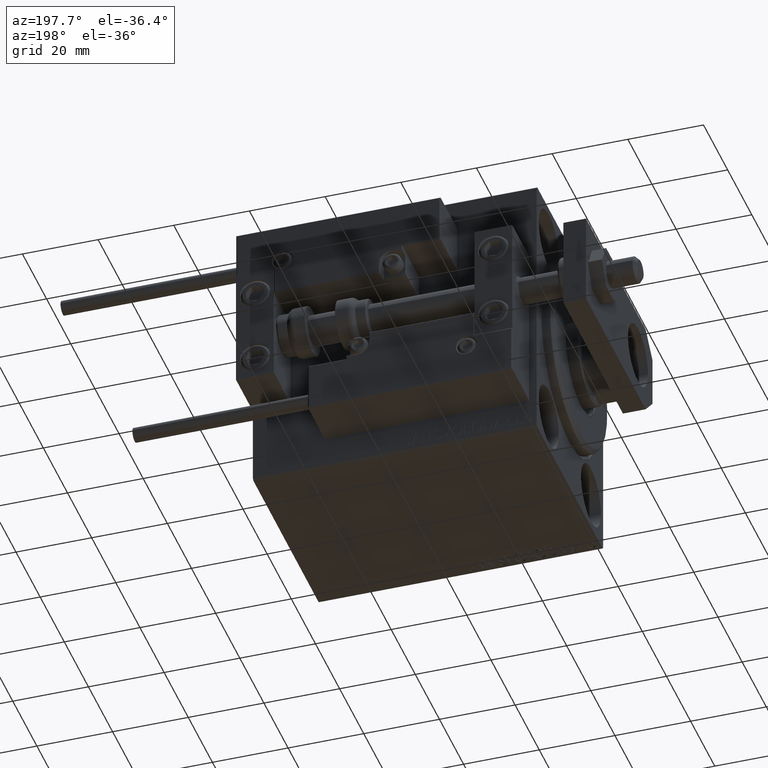
[diagram: clean part render]
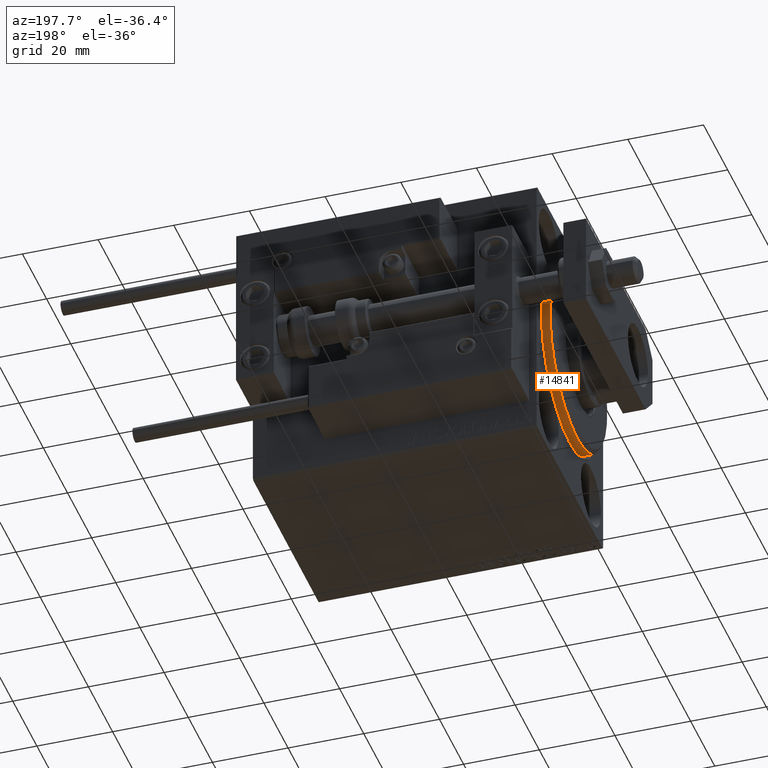
[diagram: same view with one face highlighted and labeled with its STEP entity id]
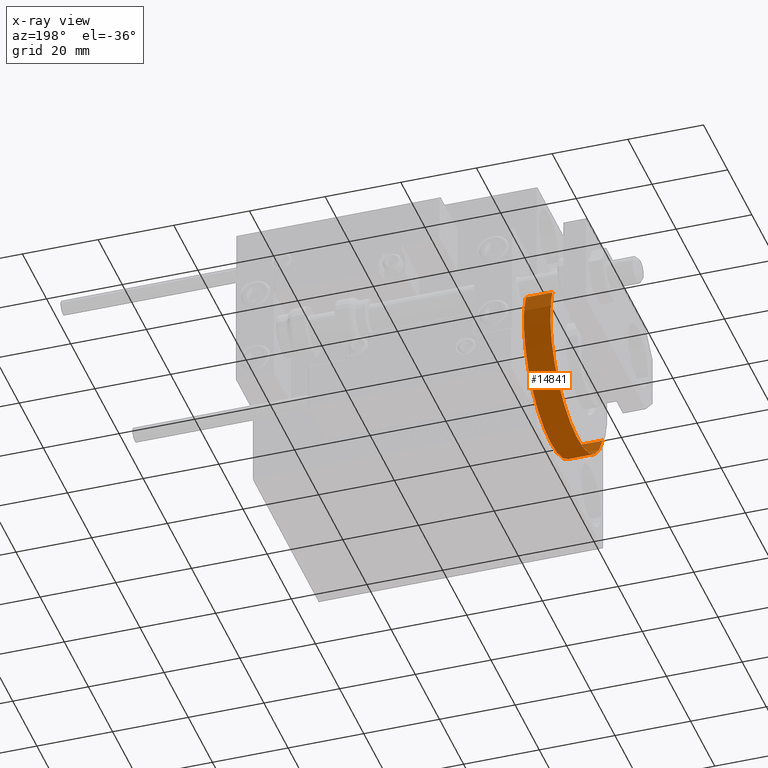
[diagram: x-ray of the same camera — body ghosted, the highlighted face saturated]
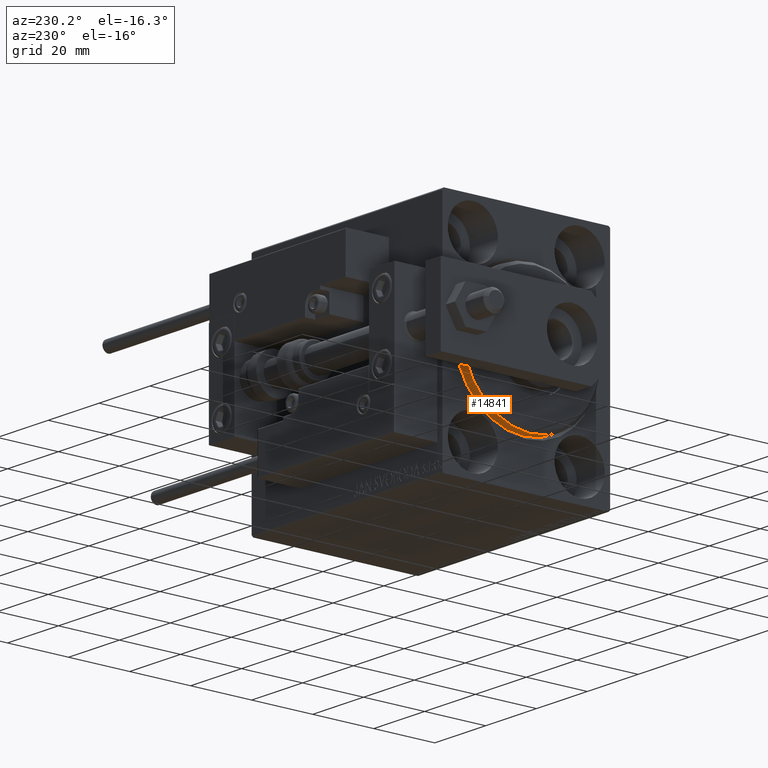
[diagram: same view with one face highlighted and labeled with its STEP entity id]
A machine part, auxiliary view. The second image highlights one B-rep face of the part: STEP entity #14841.
The next image is the same camera in x-ray: the body ghosted, the highlighted face saturated — about 0% of this face is hidden behind the body in this view.
A second angle (auxiliary view) of the same face is appended — the face is thin or edge-on in the first view.
In plain terms, the highlighted cylindrical surface (partial cylindrical patch) has radius 22.5 mm, axis along (1, 0, 0).
Its self-contained STEP definition (entity closure, byte-faithful):
#975 = LINE ( 'NONE', #32251, #6801 ) ;
#1388 = FACE_OUTER_BOUND ( 'NONE', #13546, .T. ) ;
#4994 = VERTEX_POINT ( 'NONE', #23076 ) ;
#5489 = AXIS2_PLACEMENT_3D ( 'NONE', #13219, #6158, #36429 ) ;
#6158 = DIRECTION ( 'NONE',  ( -1.000000000000000000, 0.000000000000000000, 0.000000000000000000 ) ) ;
#6801 = VECTOR ( 'NONE', #27966, 1000.000000000000000 ) ;
#8368 = CARTESIAN_POINT ( 'NONE',  ( -5.000000000000000000, 0.000000000000000000, 0.000000000000000000 ) ) ;
#9217 = CARTESIAN_POINT ( 'NONE',  ( 3.000000000000000000, 0.000000000000000000, 0.000000000000000000 ) ) ;
#9896 = CARTESIAN_POINT ( 'NONE',  ( 1.999999999999999112, 2.755455298081545172E-15, -22.50000000000000355 ) ) ;
#11906 = LINE ( 'NONE', #23752, #29965 ) ;
#13219 = CARTESIAN_POINT ( 'NONE',  ( 1.999999999999999112, 0.000000000000000000, 0.000000000000000000 ) ) ;
#13519 = CIRCLE ( 'NONE', #5489, 22.50000000000000355 ) ;
#13546 = EDGE_LOOP ( 'NONE', ( #34716, #39392, #14631, #37698 ) ) ;
#14631 = ORIENTED_EDGE ( 'NONE', *, *, #41815, .F. ) ;
#14841 = ADVANCED_FACE ( 'NONE', ( #1388 ), #32677, .T. ) ;
#15196 = DIRECTION ( 'NONE',  ( -1.000000000000000000, -0.000000000000000000, -0.000000000000000000 ) ) ;
#20946 = DIRECTION ( 'NONE',  ( 0.000000000000000000, 0.000000000000000000, 1.000000000000000000 ) ) ;
#21042 = EDGE_CURVE ( 'NONE', #4994, #32243, #13519, .T. ) ;
#21307 = DIRECTION ( 'NONE',  ( 0.000000000000000000, 0.000000000000000000, 1.000000000000000000 ) ) ;
#22876 = CARTESIAN_POINT ( 'NONE',  ( -5.000000000000000000, 0.000000000000000000, 22.50000000000000355 ) ) ;
#23076 = CARTESIAN_POINT ( 'NONE',  ( 1.999999999999999112, 0.000000000000000000, 22.50000000000000355 ) ) ;
#23752 = CARTESIAN_POINT ( 'NONE',  ( 3.000000000000000000, 2.755455298081545172E-15, -22.50000000000000355 ) ) ;
#27966 = DIRECTION ( 'NONE',  ( -1.000000000000000000, -0.000000000000000000, -0.000000000000000000 ) ) ;
#28525 = DIRECTION ( 'NONE',  ( -1.000000000000000000, 0.000000000000000000, 0.000000000000000000 ) ) ;
#29965 = VECTOR ( 'NONE', #15196, 1000.000000000000000 ) ;
#30862 = CIRCLE ( 'NONE', #42147, 22.50000000000000355 ) ;
#32243 = VERTEX_POINT ( 'NONE', #9896 ) ;
#32251 = CARTESIAN_POINT ( 'NONE',  ( 3.000000000000000000, 0.000000000000000000, 22.50000000000000355 ) ) ;
#32677 = CYLINDRICAL_SURFACE ( 'NONE', #37536, 22.50000000000000355 ) ;
#34716 = ORIENTED_EDGE ( 'NONE', *, *, #21042, .T. ) ;
#35757 = EDGE_CURVE ( 'NONE', #32243, #35936, #11906, .T. ) ;
#35936 = VERTEX_POINT ( 'NONE', #45448 ) ;
#36218 = DIRECTION ( 'NONE',  ( -1.000000000000000000, -0.000000000000000000, -0.000000000000000000 ) ) ;
#36429 = DIRECTION ( 'NONE',  ( 0.000000000000000000, 0.000000000000000000, -1.000000000000000000 ) ) ;
#37536 = AXIS2_PLACEMENT_3D ( 'NONE', #9217, #36218, #21307 ) ;
#37698 = ORIENTED_EDGE ( 'NONE', *, *, #44911, .F. ) ;
#39392 = ORIENTED_EDGE ( 'NONE', *, *, #35757, .T. ) ;
#41815 = EDGE_CURVE ( 'NONE', #42395, #35936, #30862, .T. ) ;
#42147 = AXIS2_PLACEMENT_3D ( 'NONE', #8368, #28525, #20946 ) ;
#42395 = VERTEX_POINT ( 'NONE', #22876 ) ;
#44911 = EDGE_CURVE ( 'NONE', #4994, #42395, #975, .T. ) ;
#45448 = CARTESIAN_POINT ( 'NONE',  ( -5.000000000000000000, 2.755455298081545172E-15, -22.50000000000000355 ) ) ;